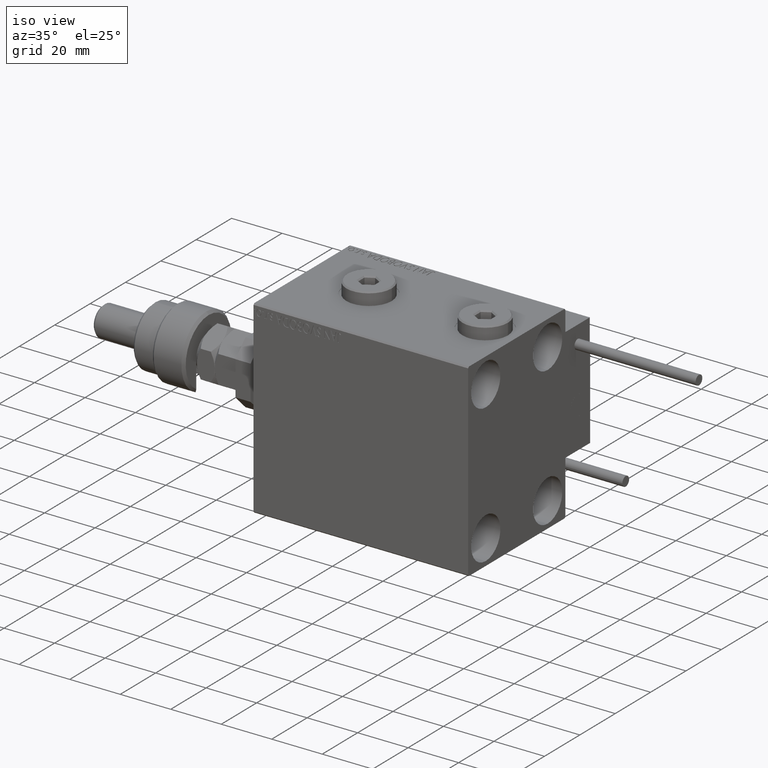
[diagram: clean part render]
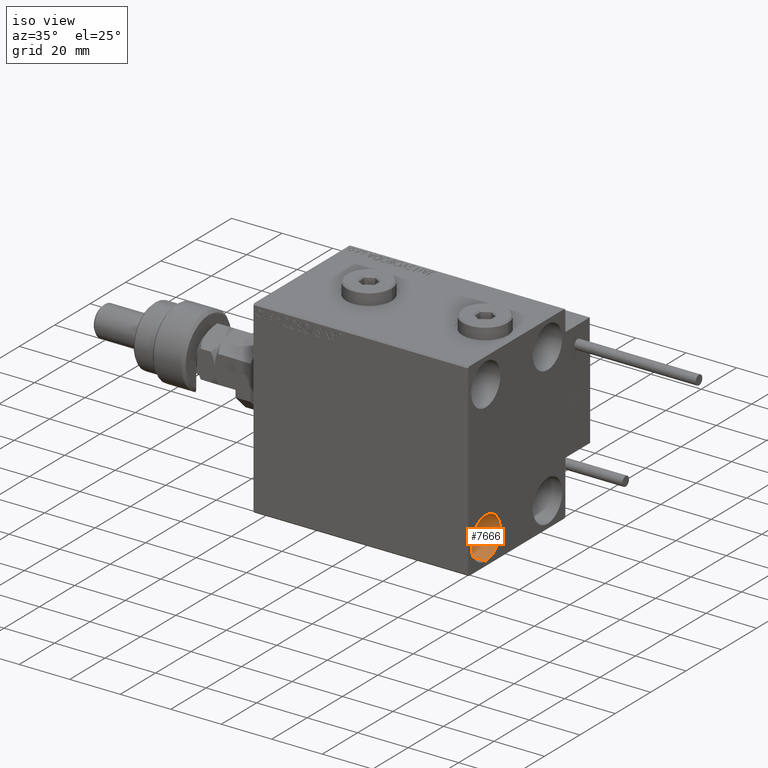
[diagram: same view with one face highlighted and labeled with its STEP entity id]
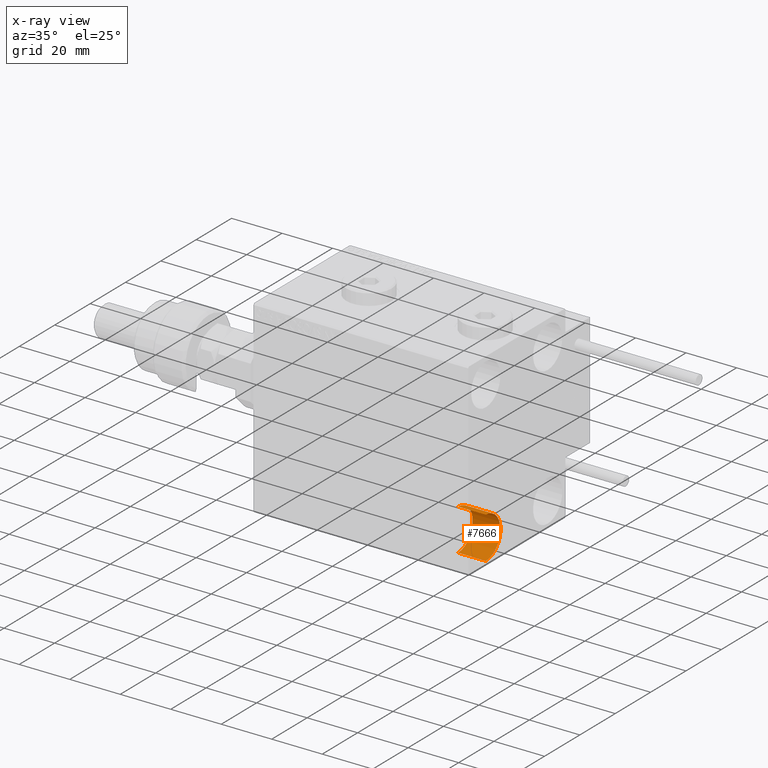
[diagram: x-ray of the same camera — body ghosted, the highlighted face saturated]
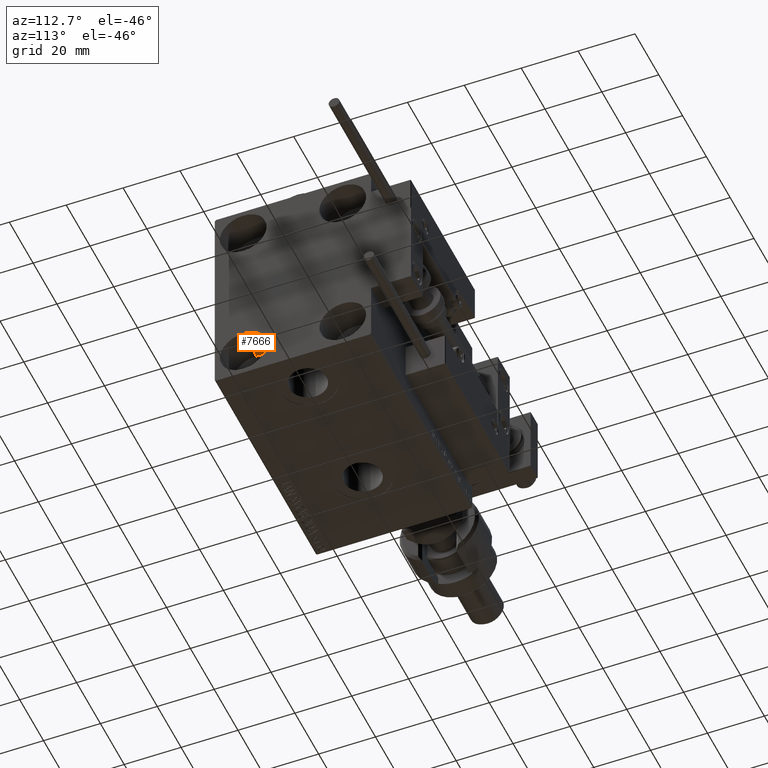
[diagram: same view with one face highlighted and labeled with its STEP entity id]
A machine part, iso view. The second image highlights one B-rep face of the part: STEP entity #7666.
The next image is the same camera in x-ray: the body ghosted, the highlighted face saturated — about 0% of this face is hidden behind the body in this view.
A second angle (auxiliary view) of the same face is appended — the face is thin or edge-on in the first view.
In plain terms, the highlighted cylindrical surface (edge-blend (fillet) strip) has radius 8.25 mm, axis along (1, 0, 0).
Its self-contained STEP definition (entity closure, byte-faithful):
#1037 = VERTEX_POINT ( 'NONE', #20721 ) ;
#3372 = LINE ( 'NONE', #28338, #7800 ) ;
#3542 = DIRECTION ( 'NONE',  ( 1.000000000000000000, -0.000000000000000000, -0.000000000000000000 ) ) ;
#4879 = ORIENTED_EDGE ( 'NONE', *, *, #36209, .T. ) ;
#5219 = DIRECTION ( 'NONE',  ( 0.000000000000000000, 0.000000000000000000, 1.000000000000000000 ) ) ;
#7666 = ADVANCED_FACE ( 'NONE', ( #16420 ), #20805, .F. ) ;
#7800 = VECTOR ( 'NONE', #48740, 1000.000000000000000 ) ;
#7812 = EDGE_CURVE ( 'NONE', #49618, #36433, #34088, .T. ) ;
#7927 = DIRECTION ( 'NONE',  ( 0.000000000000000000, 0.000000000000000000, -1.000000000000000000 ) ) ;
#11909 = VERTEX_POINT ( 'NONE', #29017 ) ;
#14462 = CARTESIAN_POINT ( 'NONE',  ( 74.00000000000001421, -17.50000000000000355, -27.50000000000000355 ) ) ;
#15310 = CARTESIAN_POINT ( 'NONE',  ( 74.00000000000001421, -17.50000000000000355, -35.75000000000000711 ) ) ;
#16420 = FACE_OUTER_BOUND ( 'NONE', #27203, .T. ) ;
#17311 = CARTESIAN_POINT ( 'NONE',  ( 85.00000000000000000, -17.50000000000000355, -27.50000000000000355 ) ) ;
#19618 = DIRECTION ( 'NONE',  ( -1.000000000000000000, -0.000000000000000000, -0.000000000000000000 ) ) ;
#19931 = CARTESIAN_POINT ( 'NONE',  ( 74.00000000000001421, -17.50000000000000355, -19.25000000000000355 ) ) ;
#20721 = CARTESIAN_POINT ( 'NONE',  ( 85.00000000000000000, -17.50000000000000355, -19.25000000000000355 ) ) ;
#20805 = CYLINDRICAL_SURFACE ( 'NONE', #42869, 8.250000000000000000 ) ;
#22717 = LINE ( 'NONE', #15310, #26403 ) ;
#26403 = VECTOR ( 'NONE', #47777, 1000.000000000000000 ) ;
#27203 = EDGE_LOOP ( 'NONE', ( #31944, #53028, #4879, #46127 ) ) ;
#28338 = CARTESIAN_POINT ( 'NONE',  ( 74.00000000000001421, -17.50000000000000355, -19.25000000000000355 ) ) ;
#29017 = CARTESIAN_POINT ( 'NONE',  ( 85.00000000000000000, -17.50000000000000355, -35.75000000000000711 ) ) ;
#31944 = ORIENTED_EDGE ( 'NONE', *, *, #53417, .F. ) ;
#34088 = CIRCLE ( 'NONE', #54321, 8.250000000000000000 ) ;
#35151 = DIRECTION ( 'NONE',  ( -1.000000000000000000, -0.000000000000000000, -0.000000000000000000 ) ) ;
#36209 = EDGE_CURVE ( 'NONE', #36433, #11909, #22717, .T. ) ;
#36433 = VERTEX_POINT ( 'NONE', #42219 ) ;
#36501 = CARTESIAN_POINT ( 'NONE',  ( 74.00000000000001421, -17.50000000000000355, -27.50000000000000355 ) ) ;
#40308 = EDGE_CURVE ( 'NONE', #1037, #11909, #41394, .T. ) ;
#41394 = CIRCLE ( 'NONE', #45801, 8.250000000000000000 ) ;
#42219 = CARTESIAN_POINT ( 'NONE',  ( 74.00000000000001421, -17.50000000000000355, -35.75000000000000711 ) ) ;
#42869 = AXIS2_PLACEMENT_3D ( 'NONE', #36501, #3542, #7927 ) ;
#44646 = DIRECTION ( 'NONE',  ( 0.000000000000000000, 0.000000000000000000, 1.000000000000000000 ) ) ;
#45801 = AXIS2_PLACEMENT_3D ( 'NONE', #17311, #35151, #5219 ) ;
#46127 = ORIENTED_EDGE ( 'NONE', *, *, #40308, .F. ) ;
#47777 = DIRECTION ( 'NONE',  ( 1.000000000000000000, -0.000000000000000000, -0.000000000000000000 ) ) ;
#48740 = DIRECTION ( 'NONE',  ( 1.000000000000000000, -0.000000000000000000, -0.000000000000000000 ) ) ;
#49618 = VERTEX_POINT ( 'NONE', #19931 ) ;
#53028 = ORIENTED_EDGE ( 'NONE', *, *, #7812, .T. ) ;
#53417 = EDGE_CURVE ( 'NONE', #49618, #1037, #3372, .T. ) ;
#54321 = AXIS2_PLACEMENT_3D ( 'NONE', #14462, #19618, #44646 ) ;